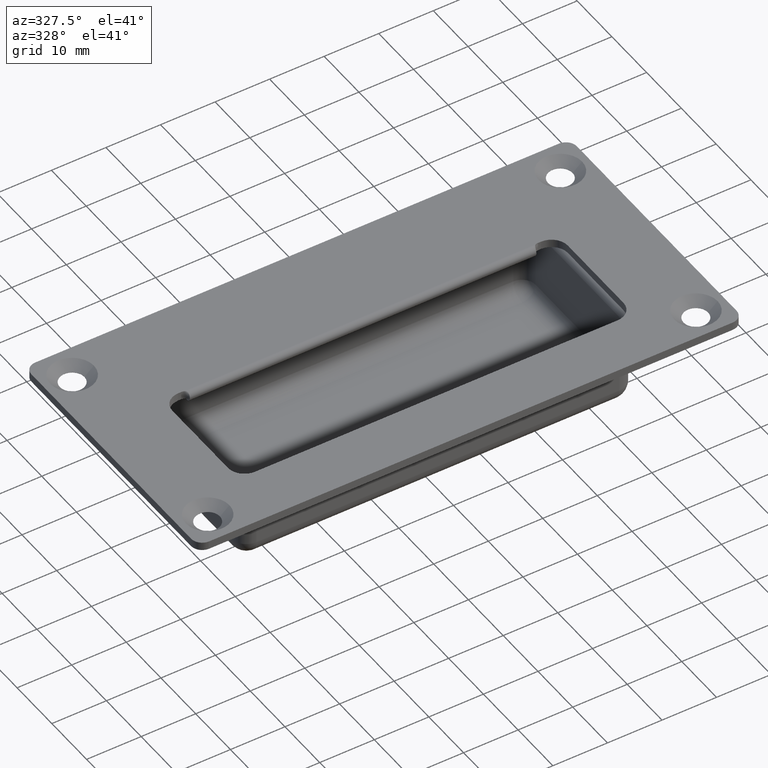
[diagram: clean part render]
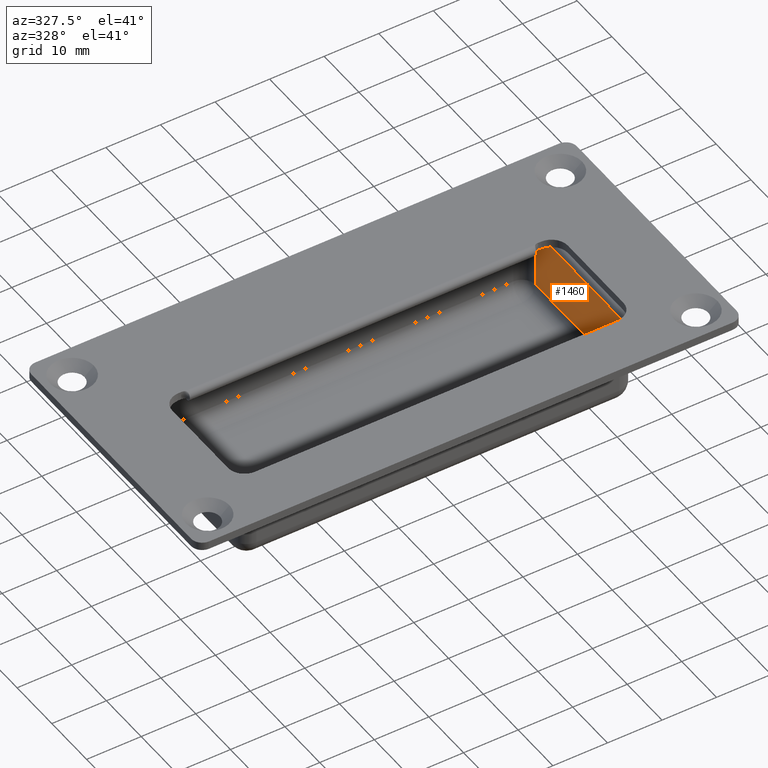
[diagram: same view with one face highlighted and labeled with its STEP entity id]
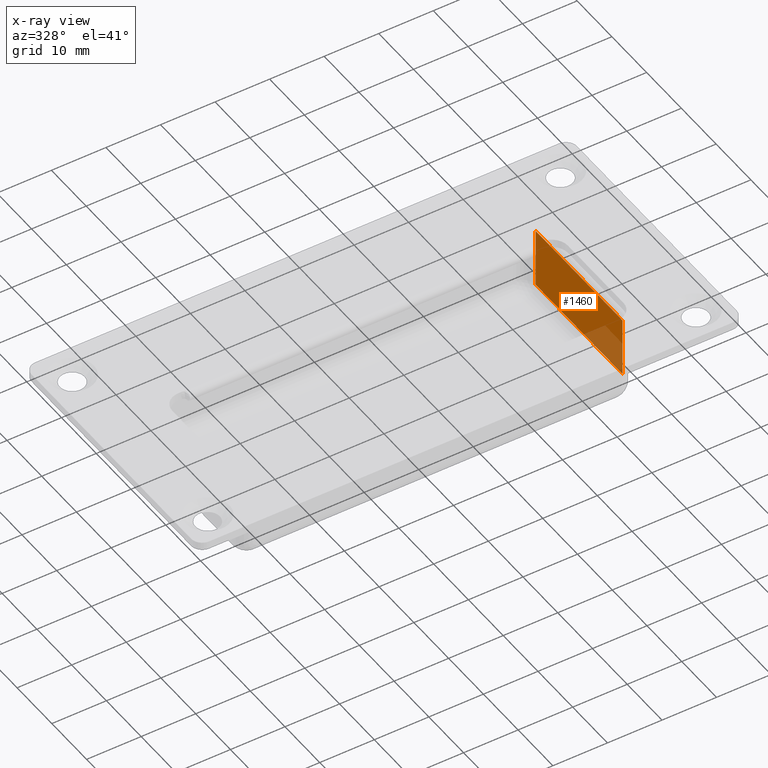
[diagram: x-ray of the same camera — body ghosted, the highlighted face saturated]
A machine part, auxiliary view. The second image highlights one B-rep face of the part: STEP entity #1460.
The next image is the same camera in x-ray: the body ghosted, the highlighted face saturated — about 18% of this face is hidden behind the body in this view.
In plain terms, the highlighted planar face has unit normal (1, 0, 0).
Its self-contained STEP definition (entity closure, byte-faithful):
#143=LINE('',#2598,#251);
#150=LINE('',#2626,#258);
#151=LINE('',#2629,#259);
#152=LINE('',#2630,#260);
#251=VECTOR('',#1899,25.);
#258=VECTOR('',#1932,11.);
#259=VECTOR('',#1935,25.);
#260=VECTOR('',#1936,11.);
#330=PLANE('',#1602);
#388=FACE_OUTER_BOUND('',#500,.T.);
#500=EDGE_LOOP('',(#1192,#1193,#1194,#1195));
#719=VERTEX_POINT('',#2590);
#721=VERTEX_POINT('',#2596);
#728=VERTEX_POINT('',#2622);
#730=VERTEX_POINT('',#2628);
#876=EDGE_CURVE('',#719,#721,#143,.T.);
#890=EDGE_CURVE('',#728,#719,#150,.T.);
#891=EDGE_CURVE('',#730,#728,#151,.T.);
#892=EDGE_CURVE('',#721,#730,#152,.T.);
#1192=ORIENTED_EDGE('',*,*,#891,.T.);
#1193=ORIENTED_EDGE('',*,*,#890,.T.);
#1194=ORIENTED_EDGE('',*,*,#876,.T.);
#1195=ORIENTED_EDGE('',*,*,#892,.T.);
#1460=ADVANCED_FACE('',(#388),#330,.F.);
#1602=AXIS2_PLACEMENT_3D('',#2627,#1933,#1934);
#1899=DIRECTION('',(0.,-1.,0.));
#1932=DIRECTION('',(0.,0.,-1.));
#1933=DIRECTION('center_axis',(1.,0.,0.));
#1934=DIRECTION('ref_axis',(0.,1.,0.));
#1935=DIRECTION('',(0.,1.,0.));
#1936=DIRECTION('',(0.,0.,1.));
#2590=CARTESIAN_POINT('',(35.75,12.5,-12.5));
#2596=CARTESIAN_POINT('',(35.75,-12.5,-12.5));
#2598=CARTESIAN_POINT('',(35.75,-7.74999999999999,-12.5));
#2622=CARTESIAN_POINT('',(35.75,12.5,-1.5));
#2626=CARTESIAN_POINT('',(35.75,12.5,-15.5));
#2627=CARTESIAN_POINT('Origin',(35.75,-15.5,-15.5));
#2628=CARTESIAN_POINT('',(35.75,-12.5,-1.5));
#2629=CARTESIAN_POINT('',(35.75,-7.75,-1.5));
#2630=CARTESIAN_POINT('',(35.75,-12.5,-15.5));